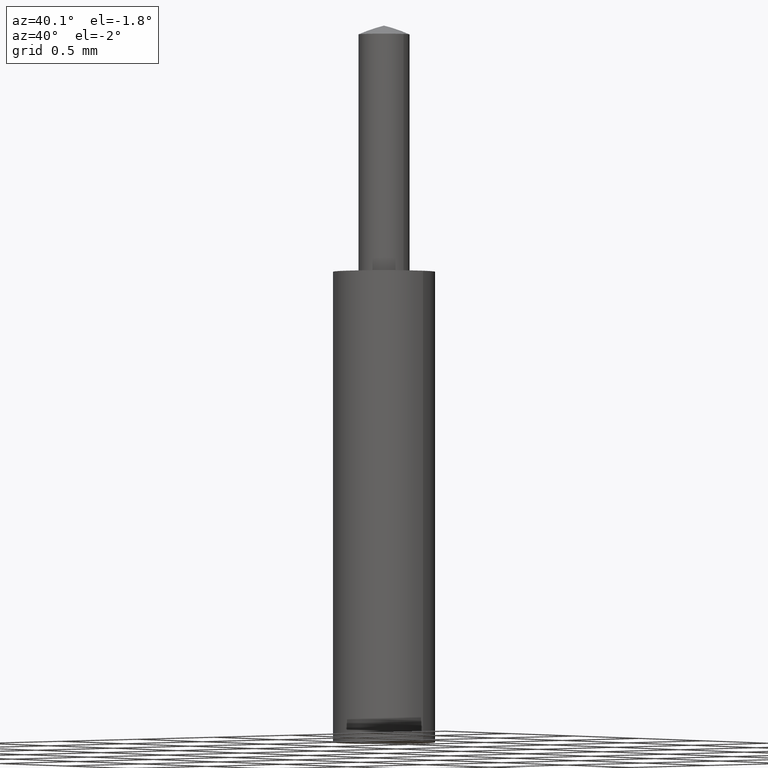
[diagram: clean part render]
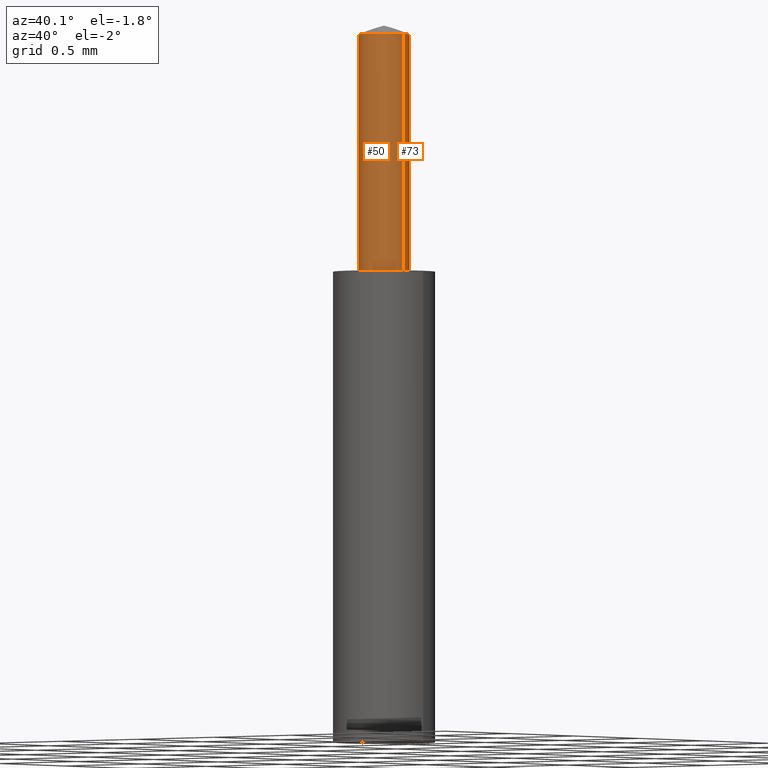
[diagram: same view with one multi-face feature highlighted, each face labeled with its STEP entity id]
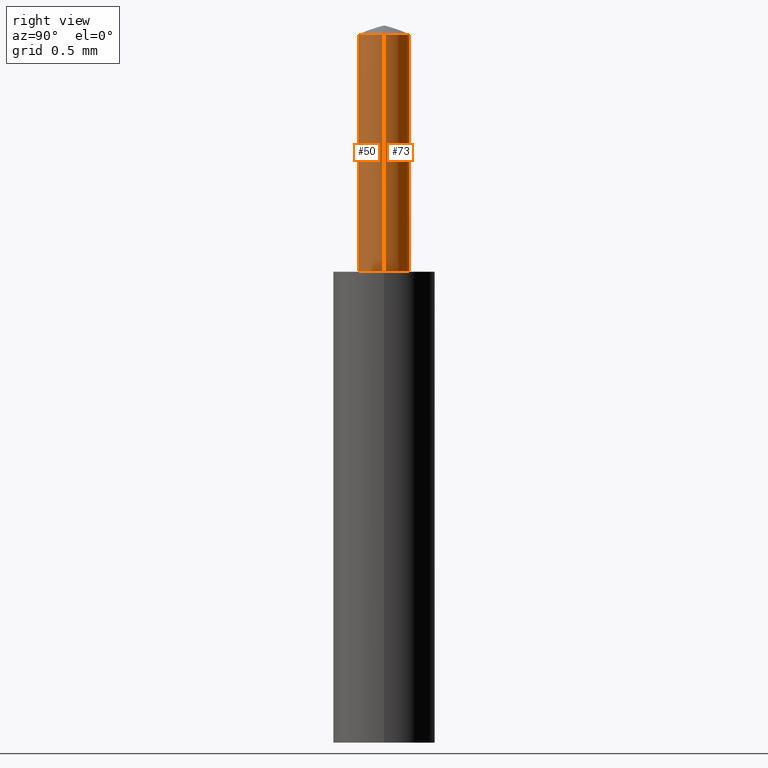
[diagram: same view with one multi-face feature highlighted, each face labeled with its STEP entity id]
A machine part, auxiliary view. The highlighted faces form ONE feature: a constant-radius fillet chain: 2 tangent blend faces with common blend radius 0.127 mm. The faces share edges in the B-rep.
A second angle (right view) of the same feature is appended — it is thin or edge-on in the first view.
Their STEP definitions:
[1] entity #50 (Cylinder):
#4 = EDGE_CURVE ( 'NONE', #264, #271, #283, .T. ) ;
#14 = EDGE_CURVE ( 'NONE', #264, #345, #355, .T. ) ;
#15 = EDGE_CURVE ( 'NONE', #271, #365, #356, .T. ) ;
#20 = EDGE_CURVE ( 'NONE', #345, #365, #333, .T. ) ;
#23 = AXIS2_PLACEMENT_3D ( 'NONE', #244, #235, #232 ) ;
#34 = AXIS2_PLACEMENT_3D ( 'NONE', #156, #155, #154 ) ;
#37 = AXIS2_PLACEMENT_3D ( 'NONE', #159, #160, #145 ) ;
#50 = ADVANCED_FACE ( 'NONE', ( #270 ), #338, .T. ) ;
#145 = DIRECTION ( 'NONE',  ( -1.000000000000000000, 0.0000000000000000000, 0.0000000000000000000 ) ) ;
#154 = DIRECTION ( 'NONE',  ( -1.000000000000000000, 0.0000000000000000000, 0.0000000000000000000 ) ) ;
#155 = DIRECTION ( 'NONE',  ( -0.0000000000000000000, -0.0000000000000000000, -1.000000000000000000 ) ) ;
#156 = CARTESIAN_POINT ( 'NONE',  ( 0.0000000000000000000, 0.0000000000000000000, 0.0000000000000000000 ) ) ;
#159 = CARTESIAN_POINT ( 'NONE',  ( 0.0000000000000000000, 0.0000000000000000000, 0.0000000000000000000 ) ) ;
#160 = DIRECTION ( 'NONE',  ( -0.0000000000000000000, -0.0000000000000000000, -1.000000000000000000 ) ) ;
#189 = CARTESIAN_POINT ( 'NONE',  ( -0.005000000000000000100, 0.0000000000000000000, 0.1387676933219367000 ) ) ;
#194 = CARTESIAN_POINT ( 'NONE',  ( 0.005000000000000000100, 6.123233995736766900E-019, 0.1387676933219367000 ) ) ;
#199 = CARTESIAN_POINT ( 'NONE',  ( -0.005000000000000000100, 0.0000000000000000000, 0.0000000000000000000 ) ) ;
#200 = CARTESIAN_POINT ( 'NONE',  ( 0.005000000000000000100, 6.123233995736766900E-019, 0.0000000000000000000 ) ) ;
#232 = DIRECTION ( 'NONE',  ( -1.000000000000000000, 0.0000000000000000000, 0.0000000000000000000 ) ) ;
#235 = DIRECTION ( 'NONE',  ( -0.0000000000000000000, -0.0000000000000000000, -1.000000000000000000 ) ) ;
#240 = CARTESIAN_POINT ( 'NONE',  ( -0.005000000000000000100, 0.0000000000000000000, 0.0000000000000000000 ) ) ;
#243 = DIRECTION ( 'NONE',  ( -0.0000000000000000000, -0.0000000000000000000, -1.000000000000000000 ) ) ;
#244 = CARTESIAN_POINT ( 'NONE',  ( 0.0000000000000000000, 0.0000000000000000000, 0.1387676933219367000 ) ) ;
#257 = DIRECTION ( 'NONE',  ( -0.0000000000000000000, -0.0000000000000000000, -1.000000000000000000 ) ) ;
#259 = CARTESIAN_POINT ( 'NONE',  ( 0.005000000000000000100, 6.123233995736766900E-019, 0.0000000000000000000 ) ) ;
#264 = VERTEX_POINT ( 'NONE', #194 ) ;
#270 = FACE_OUTER_BOUND ( 'NONE', #315, .T. ) ;
#271 = VERTEX_POINT ( 'NONE', #189 ) ;
#283 = CIRCLE ( 'NONE', #23, 0.005000000000000000100 ) ;
#293 = VECTOR ( 'NONE', #257, 39.37007874015748100 ) ;
#294 = ORIENTED_EDGE ( 'NONE', *, *, #4, .T. ) ;
#299 = ORIENTED_EDGE ( 'NONE', *, *, #14, .F. ) ;
#315 = EDGE_LOOP ( 'NONE', ( #299, #294, #361, #335 ) ) ;
#322 = VECTOR ( 'NONE', #243, 39.37007874015748100 ) ;
#333 = CIRCLE ( 'NONE', #34, 0.005000000000000000100 ) ;
#335 = ORIENTED_EDGE ( 'NONE', *, *, #20, .F. ) ;
#338 = CYLINDRICAL_SURFACE ( 'NONE', #37, 0.005000000000000000100 ) ;
#345 = VERTEX_POINT ( 'NONE', #200 ) ;
#355 = LINE ( 'NONE', #259, #293 ) ;
#356 = LINE ( 'NONE', #240, #322 ) ;
#361 = ORIENTED_EDGE ( 'NONE', *, *, #15, .T. ) ;
#365 = VERTEX_POINT ( 'NONE', #199 ) ;
[2] entity #73 (Cylinder):
#14 = EDGE_CURVE ( 'NONE', #264, #345, #355, .T. ) ;
#15 = EDGE_CURVE ( 'NONE', #271, #365, #356, .T. ) ;
#16 = EDGE_CURVE ( 'NONE', #365, #345, #281, .T. ) ;
#18 = EDGE_CURVE ( 'NONE', #271, #264, #362, .T. ) ;
#30 = AXIS2_PLACEMENT_3D ( 'NONE', #230, #229, #137 ) ;
#32 = AXIS2_PLACEMENT_3D ( 'NONE', #143, #147, #146 ) ;
#42 = AXIS2_PLACEMENT_3D ( 'NONE', #177, #175, #167 ) ;
#73 = ADVANCED_FACE ( 'NONE', ( #117 ), #109, .T. ) ;
#109 = CYLINDRICAL_SURFACE ( 'NONE', #42, 0.005000000000000000100 ) ;
#117 = FACE_OUTER_BOUND ( 'NONE', #285, .T. ) ;
#137 = DIRECTION ( 'NONE',  ( -1.000000000000000000, 0.0000000000000000000, 0.0000000000000000000 ) ) ;
#143 = CARTESIAN_POINT ( 'NONE',  ( 0.0000000000000000000, 0.0000000000000000000, 0.1387676933219367000 ) ) ;
#146 = DIRECTION ( 'NONE',  ( -1.000000000000000000, 0.0000000000000000000, 0.0000000000000000000 ) ) ;
#147 = DIRECTION ( 'NONE',  ( -0.0000000000000000000, -0.0000000000000000000, -1.000000000000000000 ) ) ;
#167 = DIRECTION ( 'NONE',  ( -1.000000000000000000, 0.0000000000000000000, 0.0000000000000000000 ) ) ;
#175 = DIRECTION ( 'NONE',  ( -0.0000000000000000000, -0.0000000000000000000, -1.000000000000000000 ) ) ;
#177 = CARTESIAN_POINT ( 'NONE',  ( 0.0000000000000000000, 0.0000000000000000000, 0.0000000000000000000 ) ) ;
#189 = CARTESIAN_POINT ( 'NONE',  ( -0.005000000000000000100, 0.0000000000000000000, 0.1387676933219367000 ) ) ;
#194 = CARTESIAN_POINT ( 'NONE',  ( 0.005000000000000000100, 6.123233995736766900E-019, 0.1387676933219367000 ) ) ;
#199 = CARTESIAN_POINT ( 'NONE',  ( -0.005000000000000000100, 0.0000000000000000000, 0.0000000000000000000 ) ) ;
#200 = CARTESIAN_POINT ( 'NONE',  ( 0.005000000000000000100, 6.123233995736766900E-019, 0.0000000000000000000 ) ) ;
#229 = DIRECTION ( 'NONE',  ( -0.0000000000000000000, -0.0000000000000000000, -1.000000000000000000 ) ) ;
#230 = CARTESIAN_POINT ( 'NONE',  ( 0.0000000000000000000, 0.0000000000000000000, 0.0000000000000000000 ) ) ;
#240 = CARTESIAN_POINT ( 'NONE',  ( -0.005000000000000000100, 0.0000000000000000000, 0.0000000000000000000 ) ) ;
#243 = DIRECTION ( 'NONE',  ( -0.0000000000000000000, -0.0000000000000000000, -1.000000000000000000 ) ) ;
#257 = DIRECTION ( 'NONE',  ( -0.0000000000000000000, -0.0000000000000000000, -1.000000000000000000 ) ) ;
#259 = CARTESIAN_POINT ( 'NONE',  ( 0.005000000000000000100, 6.123233995736766900E-019, 0.0000000000000000000 ) ) ;
#264 = VERTEX_POINT ( 'NONE', #194 ) ;
#271 = VERTEX_POINT ( 'NONE', #189 ) ;
#281 = CIRCLE ( 'NONE', #30, 0.005000000000000000100 ) ;
#285 = EDGE_LOOP ( 'NONE', ( #286, #304, #302, #366 ) ) ;
#286 = ORIENTED_EDGE ( 'NONE', *, *, #18, .T. ) ;
#293 = VECTOR ( 'NONE', #257, 39.37007874015748100 ) ;
#302 = ORIENTED_EDGE ( 'NONE', *, *, #16, .F. ) ;
#304 = ORIENTED_EDGE ( 'NONE', *, *, #14, .T. ) ;
#322 = VECTOR ( 'NONE', #243, 39.37007874015748100 ) ;
#345 = VERTEX_POINT ( 'NONE', #200 ) ;
#355 = LINE ( 'NONE', #259, #293 ) ;
#356 = LINE ( 'NONE', #240, #322 ) ;
#362 = CIRCLE ( 'NONE', #32, 0.005000000000000000100 ) ;
#365 = VERTEX_POINT ( 'NONE', #199 ) ;
#366 = ORIENTED_EDGE ( 'NONE', *, *, #15, .F. ) ;